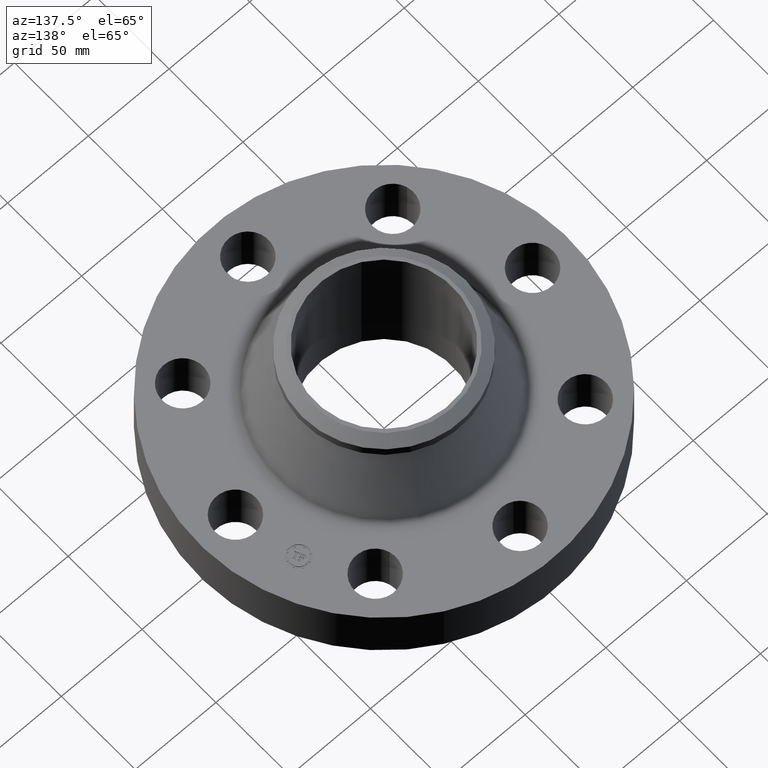
[diagram: clean part render]
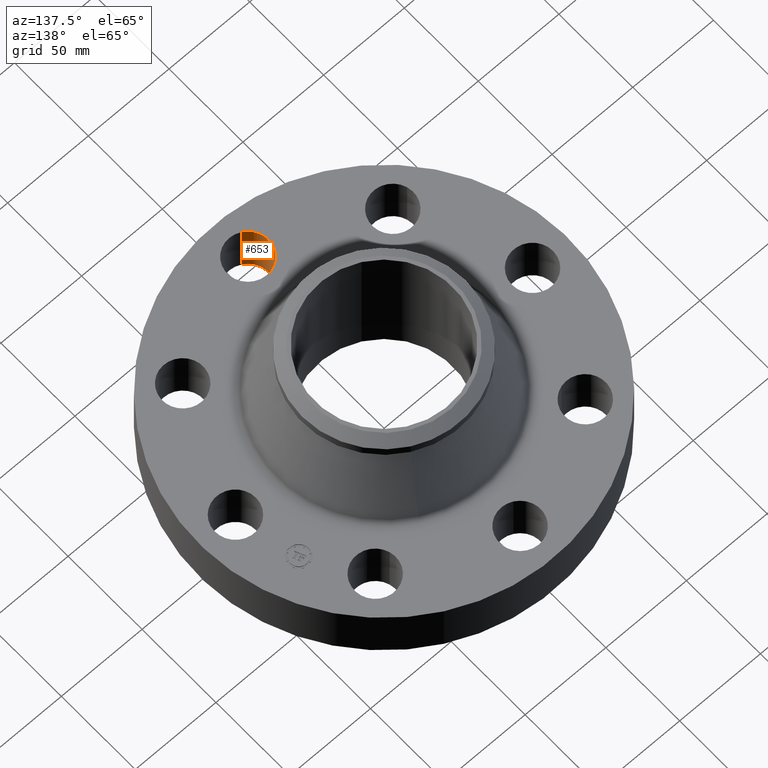
[diagram: same view with one face highlighted and labeled with its STEP entity id]
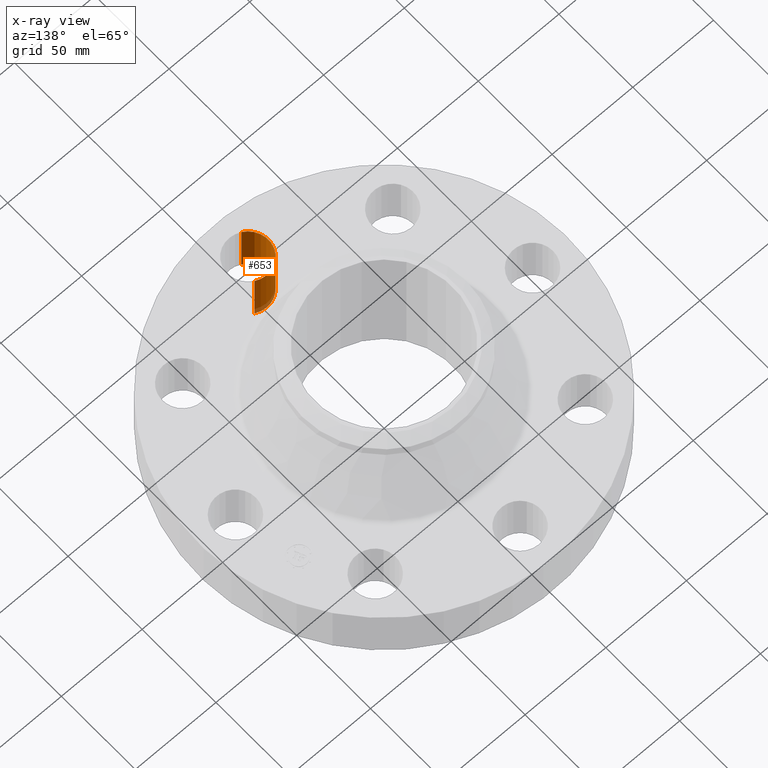
[diagram: x-ray of the same camera — body ghosted, the highlighted face saturated]
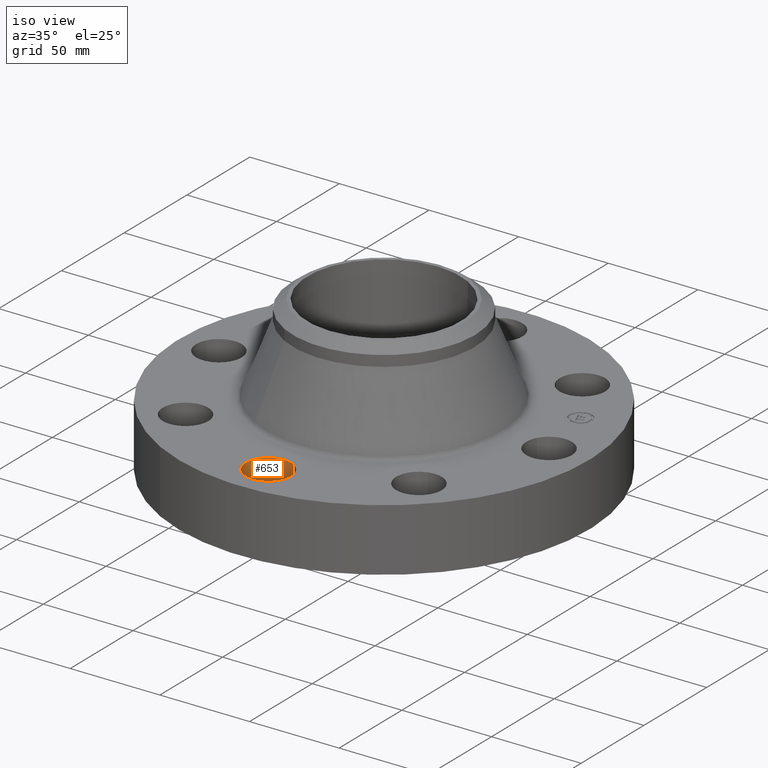
[diagram: same view with one face highlighted and labeled with its STEP entity id]
A machine part, auxiliary view. The second image highlights one B-rep face of the part: STEP entity #653.
The next image is the same camera in x-ray: the body ghosted, the highlighted face saturated — about 5% of this face is hidden behind the body in this view.
A second angle (iso view) of the same face is appended — the face is thin or edge-on in the first view.
In plain terms, the highlighted cylindrical surface (edge-blend (fillet) strip) has radius 12.7 mm, axis along (0, -0, -1).
Its self-contained STEP definition (entity closure, byte-faithful):
#470=AXIS2_PLACEMENT_3D('Circle Axis2P3D',#468,#469,$) ;
#614=AXIS2_PLACEMENT_3D('Cylinder Axis2P3D',#611,#612,#613) ;
#644=AXIS2_PLACEMENT_3D('Circle Axis2P3D',#642,#643,$) ;
#463=CARTESIAN_POINT('Vertex',(0.239712769303,-3.18620871907,0.)) ;
#465=CARTESIAN_POINT('Vertex',(-0.239712769303,-4.06379128096,0.)) ;
#468=CARTESIAN_POINT('Axis2P3D Location',(-1.39870617276E-016,-3.62500000001,0.)) ;
#611=CARTESIAN_POINT('Axis2P3D Location',(-3.37515236756E-016,-3.62500000001,1.37606299213)) ;
#616=CARTESIAN_POINT('Line Origine',(0.239712769303,-3.18620871907,0.690000000003)) ;
#620=CARTESIAN_POINT('Vertex',(0.239712769303,-3.18620871907,1.38000000001)) ;
#623=CARTESIAN_POINT('Line Origine',(-0.239712769303,-4.06379128096,0.690000000003)) ;
#627=CARTESIAN_POINT('Vertex',(-0.239712769303,-4.06379128096,1.38000000001)) ;
#642=CARTESIAN_POINT('Axis2P3D Location',(-3.37515236756E-016,-3.62500000001,1.38000000001)) ;
#469=DIRECTION('Axis2P3D Direction',(0.,0.,-0.0393700787402)) ;
#612=DIRECTION('Axis2P3D Direction',(0.,-0.,-0.0393700787402)) ;
#613=DIRECTION('Axis2P3D XDirection',(-0.0188750212049,-0.0345504945626,0.)) ;
#617=DIRECTION('Vector Direction',(0.,0.,-0.0393700787402)) ;
#624=DIRECTION('Vector Direction',(0.,0.,-0.0393700787402)) ;
#643=DIRECTION('Axis2P3D Direction',(0.,-0.,-0.0393700787402)) ;
#618=VECTOR('Line Direction',#617,0.0393700787402) ;
#625=VECTOR('Line Direction',#624,0.0393700787402) ;
#648=ORIENTED_EDGE('',*,*,#629,.F.) ;
#649=ORIENTED_EDGE('',*,*,#472,.T.) ;
#650=ORIENTED_EDGE('',*,*,#622,.T.) ;
#651=ORIENTED_EDGE('',*,*,#646,.F.) ;
#653=ADVANCED_FACE('PartBody',(#652),#615,.F.) ;
#471=CIRCLE('generated circle',#470,0.500000000002) ;
#645=CIRCLE('generated circle',#644,0.500000000002) ;
#615=CYLINDRICAL_SURFACE('generated cylinder',#614,0.500000000002) ;
#472=EDGE_CURVE('',#466,#464,#471,.T.) ;
#622=EDGE_CURVE('',#464,#621,#619,.F.) ;
#629=EDGE_CURVE('',#466,#628,#626,.F.) ;
#646=EDGE_CURVE('',#628,#621,#645,.T.) ;
#647=EDGE_LOOP('',(#648,#649,#650,#651)) ;
#652=FACE_OUTER_BOUND('',#647,.T.) ;
#619=LINE('Line',#616,#618) ;
#626=LINE('Line',#623,#625) ;
#464=VERTEX_POINT('',#463) ;
#466=VERTEX_POINT('',#465) ;
#621=VERTEX_POINT('',#620) ;
#628=VERTEX_POINT('',#627) ;